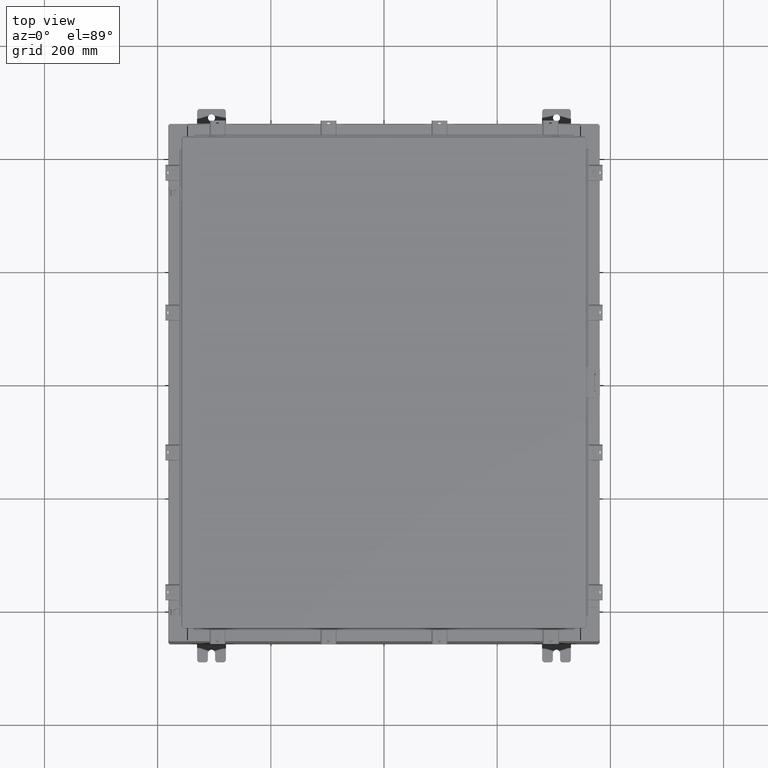
[diagram: clean part render]
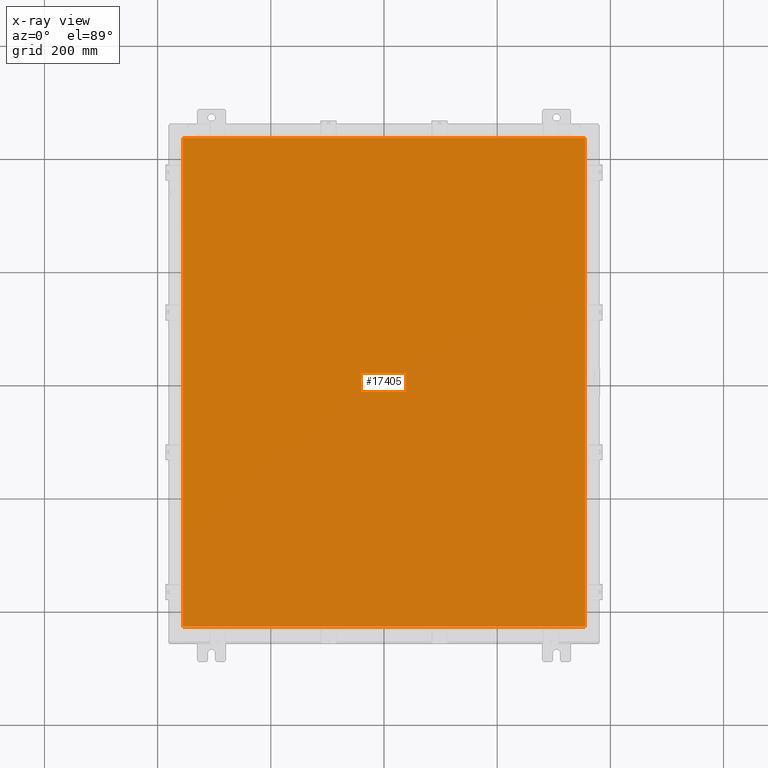
[diagram: x-ray — body ghosted, one internal face saturated and labeled with its STEP entity id]
A machine part, top view, then the same camera in x-ray: the body is ghosted and one INTERNAL B-rep face — a face not visible from any outside direction — is saturated and labeled: STEP entity #17405.
In plain terms, the highlighted planar face has unit normal (0, 0, -1).
Its self-contained STEP definition (entity closure, byte-faithful):
#269 = VECTOR ( 'NONE', #12891, 39.37007874015748100 ) ;
#1294 = EDGE_CURVE ( 'NONE', #6767, #20732, #13480, .T. ) ;
#1333 = VERTEX_POINT ( 'NONE', #20328 ) ;
#2596 = DIRECTION ( 'NONE',  ( -1.000000000000000000, 0.0000000000000000000, -0.0000000000000000000 ) ) ;
#2772 = LINE ( 'NONE', #12862, #17403 ) ;
#4121 = CARTESIAN_POINT ( 'NONE',  ( 13.99029999999999800, 17.00629999999999600, -0.07470000000000000300 ) ) ;
#5626 = EDGE_CURVE ( 'NONE', #1333, #6767, #23683, .T. ) ;
#6043 = EDGE_CURVE ( 'NONE', #20732, #23454, #10331, .T. ) ;
#6767 = VERTEX_POINT ( 'NONE', #24331 ) ;
#7311 = ORIENTED_EDGE ( 'NONE', *, *, #23292, .F. ) ;
#8174 = ORIENTED_EDGE ( 'NONE', *, *, #5626, .F. ) ;
#8594 = CARTESIAN_POINT ( 'NONE',  ( 13.99029999999999800, -17.00630000000000300, -0.07470000000000000300 ) ) ;
#9186 = DIRECTION ( 'NONE',  ( -1.000000000000000000, -0.0000000000000000000, -0.0000000000000000000 ) ) ;
#9597 = VECTOR ( 'NONE', #24018, 39.37007874015748100 ) ;
#9746 = CARTESIAN_POINT ( 'NONE',  ( -13.99030000000000000, 17.00630000000000000, -0.07470000000000019700 ) ) ;
#10331 = LINE ( 'NONE', #10974, #269 ) ;
#10707 = AXIS2_PLACEMENT_3D ( 'NONE', #17756, #13994, #2596 ) ;
#10974 = CARTESIAN_POINT ( 'NONE',  ( 13.99029999999999800, -17.00630000000000700, -0.07470000000000019700 ) ) ;
#11586 = DIRECTION ( 'NONE',  ( 0.0000000000000000000, -1.000000000000000000, 0.0000000000000000000 ) ) ;
#12264 = ORIENTED_EDGE ( 'NONE', *, *, #6043, .F. ) ;
#12862 = CARTESIAN_POINT ( 'NONE',  ( 13.99029999999999600, 17.00629999999999600, -0.07469999999999910000 ) ) ;
#12891 = DIRECTION ( 'NONE',  ( 0.0000000000000000000, 1.000000000000000000, 0.0000000000000000000 ) ) ;
#13046 = VECTOR ( 'NONE', #11586, 39.37007874015748100 ) ;
#13480 = LINE ( 'NONE', #14624, #9597 ) ;
#13994 = DIRECTION ( 'NONE',  ( 0.0000000000000000000, 0.0000000000000000000, -1.000000000000000000 ) ) ;
#14624 = CARTESIAN_POINT ( 'NONE',  ( -13.99029999999999800, -17.00630000000000300, -0.07470000000000019700 ) ) ;
#17403 = VECTOR ( 'NONE', #9186, 39.37007874015748100 ) ;
#17405 = ADVANCED_FACE ( 'NONE', ( #21358 ), #23419, .T. ) ;
#17756 = CARTESIAN_POINT ( 'NONE',  ( 0.0000000000000000000, 0.0000000000000000000, -0.07470000000000000300 ) ) ;
#19700 = ORIENTED_EDGE ( 'NONE', *, *, #1294, .F. ) ;
#20328 = CARTESIAN_POINT ( 'NONE',  ( -13.99030000000000000, 17.00629999999999600, -0.07470000000000000300 ) ) ;
#20732 = VERTEX_POINT ( 'NONE', #8594 ) ;
#21358 = FACE_OUTER_BOUND ( 'NONE', #24214, .T. ) ;
#23292 = EDGE_CURVE ( 'NONE', #23454, #1333, #2772, .T. ) ;
#23419 = PLANE ( 'NONE',  #10707 ) ;
#23454 = VERTEX_POINT ( 'NONE', #4121 ) ;
#23683 = LINE ( 'NONE', #9746, #13046 ) ;
#24018 = DIRECTION ( 'NONE',  ( 1.000000000000000000, -0.0000000000000000000, -0.0000000000000000000 ) ) ;
#24214 = EDGE_LOOP ( 'NONE', ( #12264, #19700, #8174, #7311 ) ) ;
#24331 = CARTESIAN_POINT ( 'NONE',  ( -13.99030000000000000, -17.00630000000000300, -0.07470000000000000300 ) ) ;